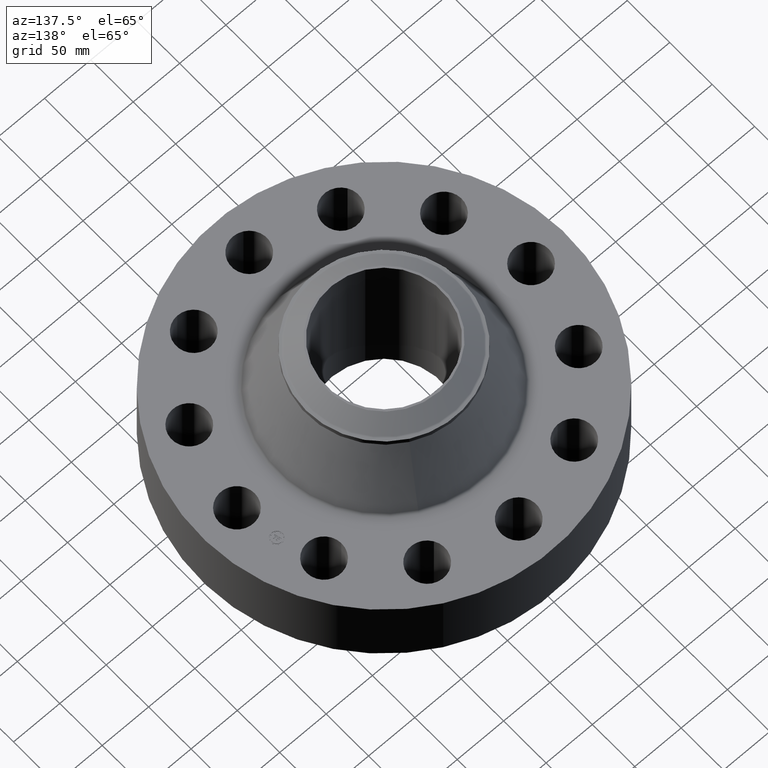
[diagram: clean part render]
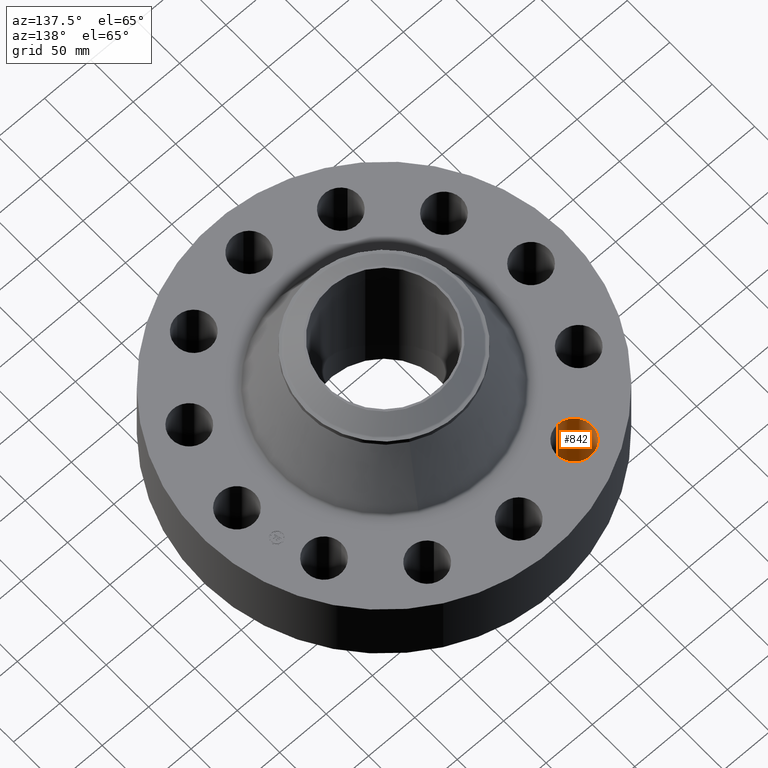
[diagram: same view with one face highlighted and labeled with its STEP entity id]
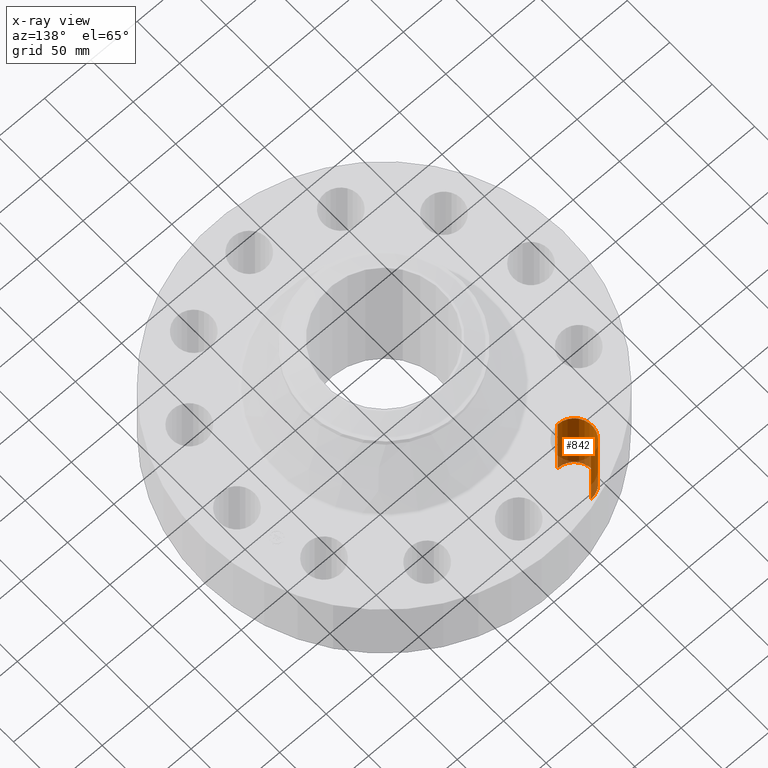
[diagram: x-ray of the same camera — body ghosted, the highlighted face saturated]
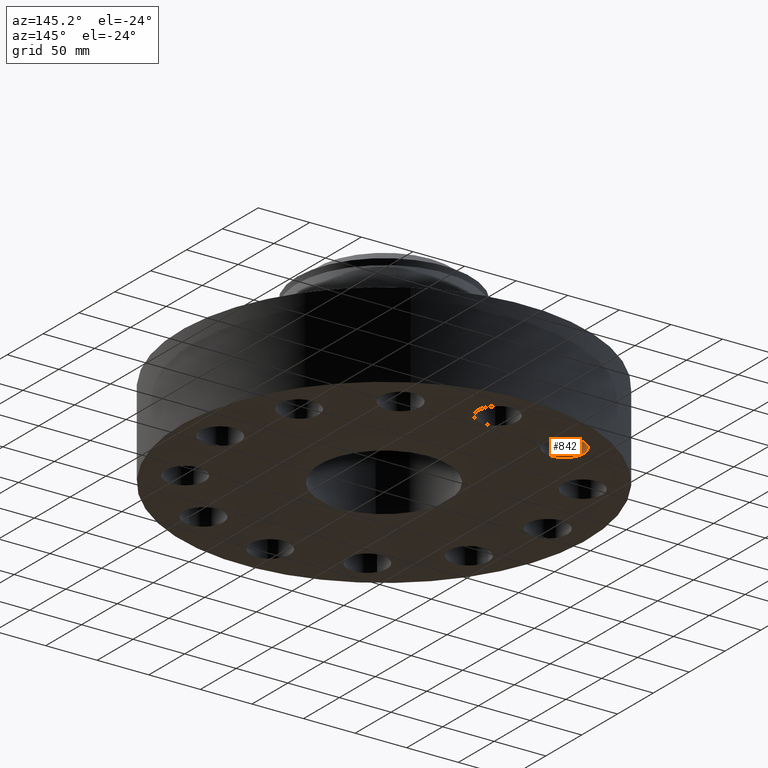
[diagram: same view with one face highlighted and labeled with its STEP entity id]
A machine part, auxiliary view. The second image highlights one B-rep face of the part: STEP entity #842.
The next image is the same camera in x-ray: the body ghosted, the highlighted face saturated — about 13% of this face is hidden behind the body in this view.
A second angle (auxiliary view) of the same face is appended — the face is thin or edge-on in the first view.
In plain terms, the highlighted cylindrical surface (edge-blend (fillet) strip) has radius 19.05 mm, axis along (0, 0, -1).
Its self-contained STEP definition (entity closure, byte-faithful):
#655=AXIS2_PLACEMENT_3D('Circle Axis2P3D',#653,#654,$) ;
#815=AXIS2_PLACEMENT_3D('Cylinder Axis2P3D',#812,#813,#814) ;
#833=AXIS2_PLACEMENT_3D('Circle Axis2P3D',#831,#832,$) ;
#653=CARTESIAN_POINT('Axis2P3D Location',(-3.12500000001,5.41265877367,0.)) ;
#657=CARTESIAN_POINT('Vertex',(-3.10730256104,4.66286760231,0.)) ;
#659=CARTESIAN_POINT('Vertex',(-3.14269743898,6.16244994504,0.)) ;
#812=CARTESIAN_POINT('Axis2P3D Location',(-3.12500000001,5.41265877367,3.24606299214)) ;
#817=CARTESIAN_POINT('Line Origine',(-3.10730256104,4.66286760231,1.62500000001)) ;
#821=CARTESIAN_POINT('Vertex',(-3.10730256104,4.66286760231,3.25000000001)) ;
#824=CARTESIAN_POINT('Line Origine',(-3.14269743898,6.16244994504,1.62500000001)) ;
#828=CARTESIAN_POINT('Vertex',(-3.14269743898,6.16244994504,3.25000000001)) ;
#831=CARTESIAN_POINT('Axis2P3D Location',(-3.12500000001,5.41265877367,3.25000000001)) ;
#654=DIRECTION('Axis2P3D Direction',(0.,0.,-0.0393700787402)) ;
#813=DIRECTION('Axis2P3D Direction',(0.,0.,-0.0393700787402)) ;
#814=DIRECTION('Axis2P3D XDirection',(-0.000928999420902,0.039359116607,0.)) ;
#818=DIRECTION('Vector Direction',(0.,0.,-0.0393700787402)) ;
#825=DIRECTION('Vector Direction',(0.,0.,-0.0393700787402)) ;
#832=DIRECTION('Axis2P3D Direction',(0.,0.,-0.0393700787402)) ;
#819=VECTOR('Line Direction',#818,0.0393700787402) ;
#826=VECTOR('Line Direction',#825,0.0393700787402) ;
#837=ORIENTED_EDGE('',*,*,#823,.F.) ;
#838=ORIENTED_EDGE('',*,*,#661,.T.) ;
#839=ORIENTED_EDGE('',*,*,#830,.T.) ;
#840=ORIENTED_EDGE('',*,*,#835,.F.) ;
#842=ADVANCED_FACE('PartBody',(#841),#816,.F.) ;
#656=CIRCLE('generated circle',#655,0.750000000003) ;
#834=CIRCLE('generated circle',#833,0.750000000003) ;
#816=CYLINDRICAL_SURFACE('generated cylinder',#815,0.750000000003) ;
#661=EDGE_CURVE('',#658,#660,#656,.T.) ;
#823=EDGE_CURVE('',#658,#822,#820,.F.) ;
#830=EDGE_CURVE('',#660,#829,#827,.F.) ;
#835=EDGE_CURVE('',#822,#829,#834,.T.) ;
#836=EDGE_LOOP('',(#837,#838,#839,#840)) ;
#841=FACE_OUTER_BOUND('',#836,.T.) ;
#820=LINE('Line',#817,#819) ;
#827=LINE('Line',#824,#826) ;
#658=VERTEX_POINT('',#657) ;
#660=VERTEX_POINT('',#659) ;
#822=VERTEX_POINT('',#821) ;
#829=VERTEX_POINT('',#828) ;